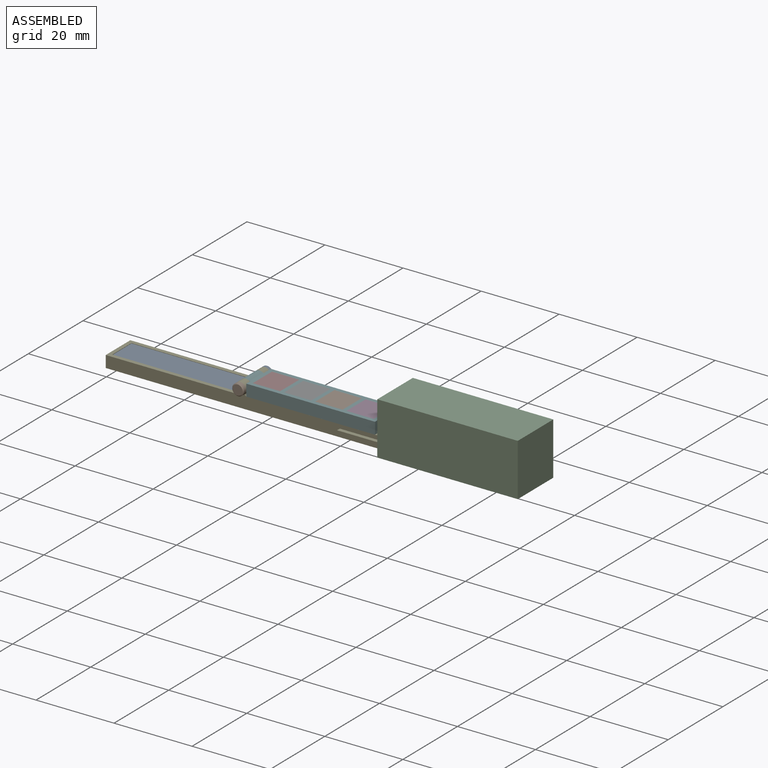
[diagram: assembled view]
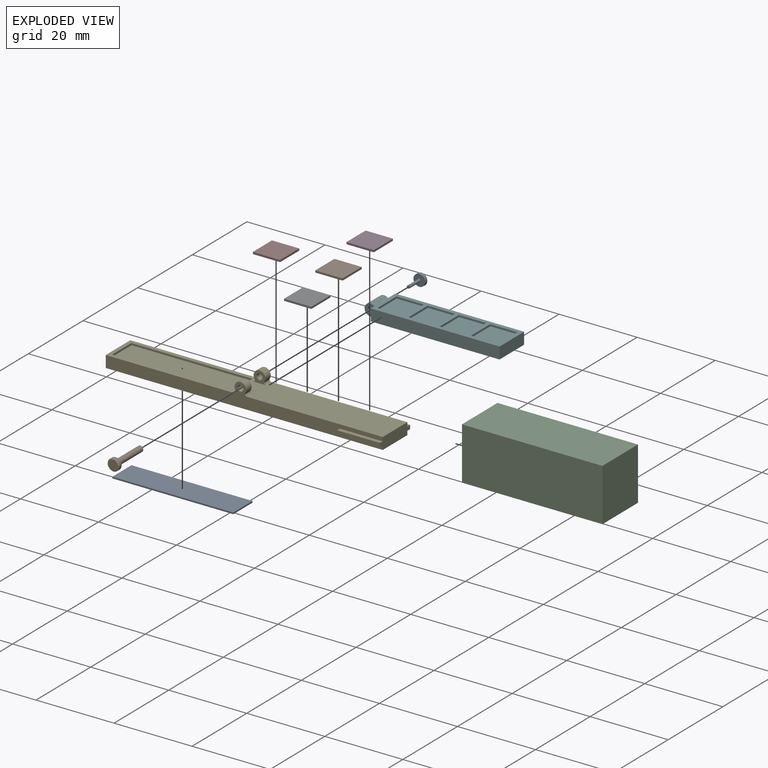
[diagram: exploded view]
GUIDED TOUR — MATED ASSEMBLY (Onshape document f24ed697e48d7db3d2a4cfa4, AutoMate assembly f24ed697e48d7db3d2a4cfa4_e18a2845403918bc11352d58_a255f0dcfe591fc9f98d8d66_default)

This assembly has 10 components, labeled P0..P9 below (a component is one placed occurrence of a part; the same part can appear more than once), held together by 11 mates. A mate is a constraint between two components; its type names the relative motion it leaves free:
  CYLINDRICAL — leaves both rotation about and translation along the listed axis free,
  FASTENED — locks the two components together rigidly (no relative motion),
  REVOLUTE — leaves rotation about the listed axis free (a hinge),
  SLIDER — leaves translation along the listed axis free.
Axis/direction vectors are unit vectors and 'through' points are millimeter coordinates, both in the assembly's world frame.

MATES
  1. FASTENED "Fastened 7": P0 <-> P1, direction (0.000, -1.000, 0.000) through (-54.50, 0.50, 5.50) mm
  2. REVOLUTE "Revolute 2": P1 <-> P4, axis (0.000, 1.000, 0.000) through (-54.50, -4.50, 5.50) mm
  3. FASTENED "Fastened 2": P5 <-> P7, direction (0.000, 0.000, 1.000) through (-48.50, 0.00, 6.50) mm
  4. SLIDER "Slider 1": P4 <-> P2, axis (1.000, 0.000, 0.000) through (-18.00, 4.50, 1.00) mm
  5. FASTENED "Fastened 3": P6 <-> P5, direction (0.000, 0.000, -1.000) through (-40.50, 0.00, 6.50) mm
  6. CYLINDRICAL "Cylindrical 2": P0 <-> P4, axis (0.000, 1.000, 0.000) through (-54.50, 2.50, 5.50) mm
  7. CYLINDRICAL "Cylindrical 1": P1 <-> P4, axis (0.000, -1.000, 0.000) through (-54.50, 0.00, 5.50) mm
  8. FASTENED "Fastened 1": P4 <-> P8, direction (0.000, 0.000, 1.000) through (-72.50, 0.00, 3.50) mm
  9. REVOLUTE "Revolute 1": P5 <-> P4, axis (0.000, -1.000, 0.000) through (-54.50, -2.50, 5.50) mm
  10. FASTENED "Fastened 5": P3 <-> P5, direction (0.000, 0.000, -1.000) through (-24.50, 0.00, 6.50) mm
  11. FASTENED "Fastened 4": P9 <-> P5, direction (0.000, 0.000, -1.000) through (-32.50, 0.00, 6.50) mm

ASSEMBLY ORDER
  1. P4 — the base component [order heuristic]
  2. P5 — core [order heuristic]
  3. P1 [order verified]
  4. P0 [order verified]
  5. P8 [order verified]
  6. P9 [order verified]
  7. P7 [order verified]
  8. P6 [order verified]
  9. P3 [order verified]
  10. P2 [order verified]
Order-tag legend:
  [order verified] — this step's position reverses a verified removal order: the component was checked to insert without passing through the ones already placed.
  [order heuristic] — the first 2 components form the assembly's core: parts whose collision-free extraction could not be verified, listed in mate-graph order.

Of the 10 components, 1 carries the full construction recipe — the FeatureScript program that regenerates the part's solid from scratch; the rest are supplied as boundary geometry only.
Each toured component is shown spotlighted twice — in the assembled view, then in the exploded view, where a leader line traces a displaced component back to its assembled socket (saturated green if recipe-attached, orange if geometry-only; every other component desaturated gray) — followed by its recipe or geometry summary and the mates that hold it.
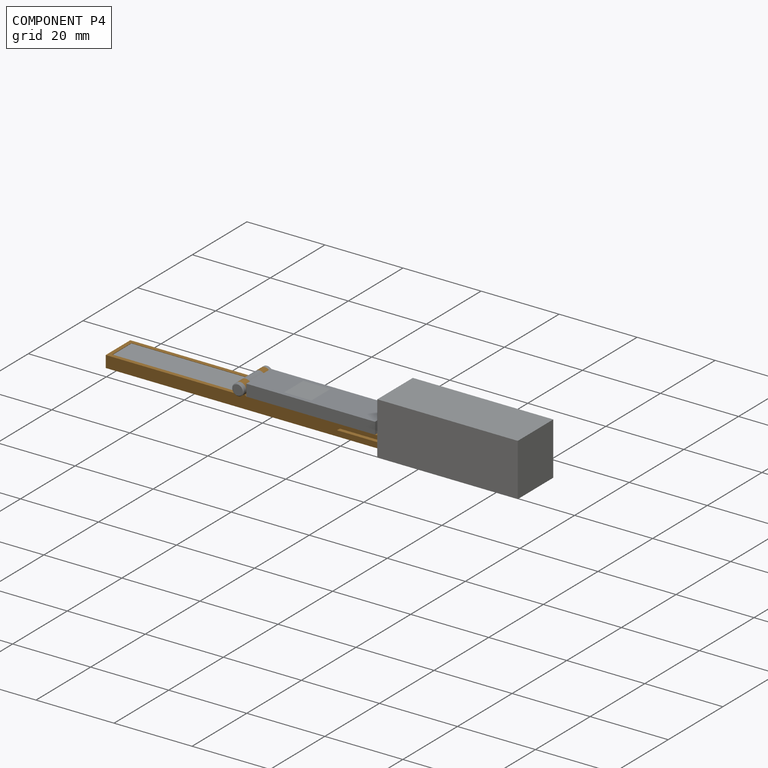
[diagram: component P4 — assembled]
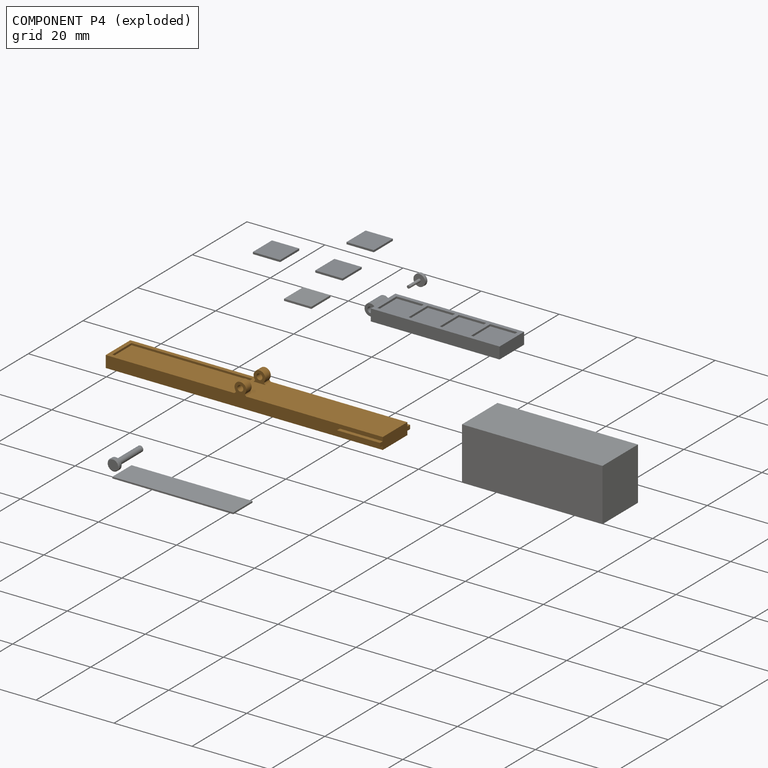
[diagram: component P4 — exploded]
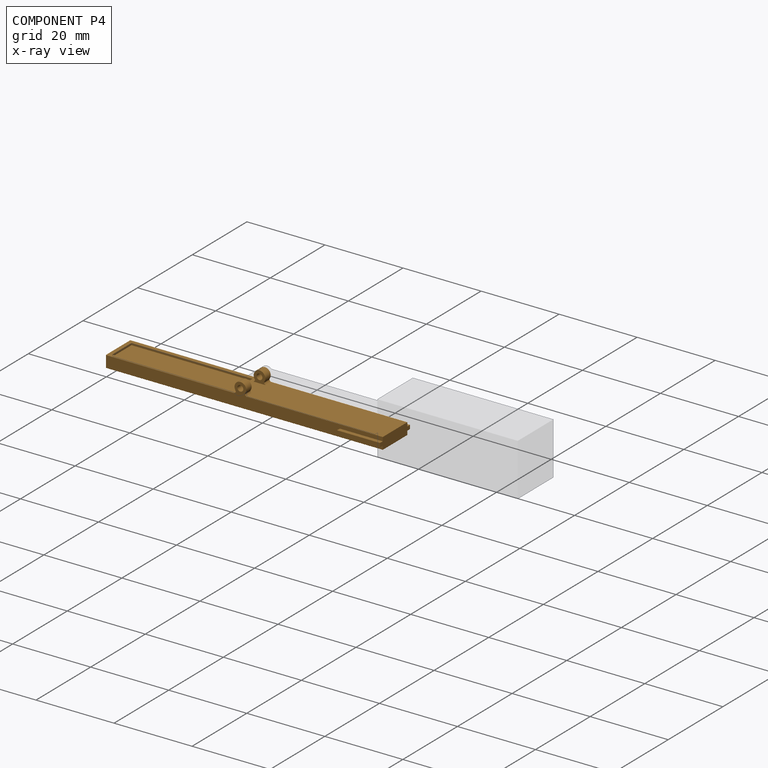
[diagram: component P4 — x-ray view]
COMPONENT P4 — geometry summary (no construction recipe available for this part):
  bounding box: 71.0 x 11.0 x 6.0 mm
  B-rep topology: 1 solid, 37 faces, 204 edges
  volume: 1854 mm^3 (40% of its bounding box)
  symmetry: mirror-symmetric across its y mid-plane
Held by: REVOLUTE mate "Revolute 2" to P1; SLIDER mate "Slider 1" to P2; CYLINDRICAL mate "Cylindrical 2" to P0; CYLINDRICAL mate "Cylindrical 1" to P1; FASTENED mate "Fastened 1" to P8; REVOLUTE mate "Revolute 1" to P5.
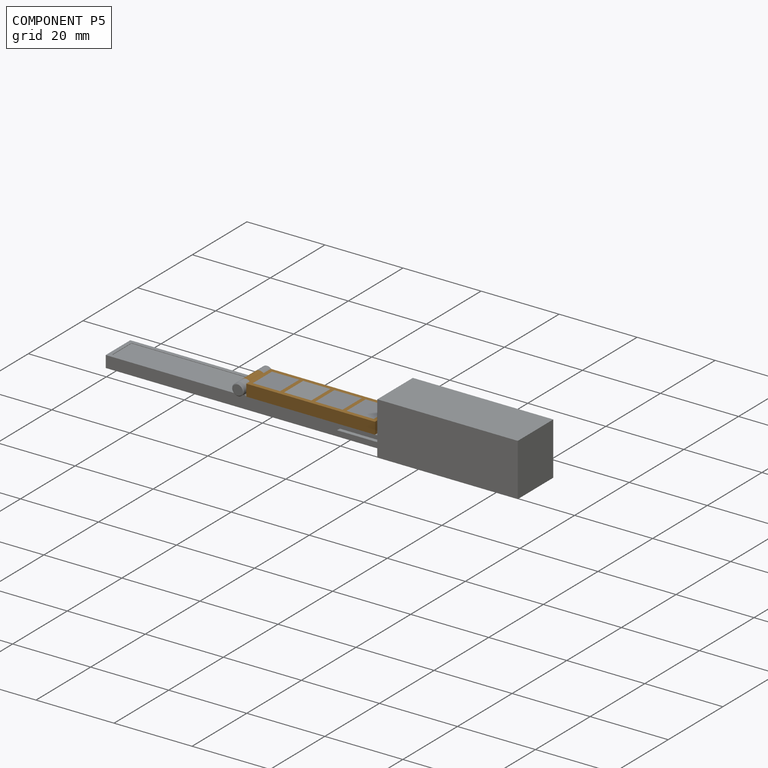
[diagram: component P5 — assembled]
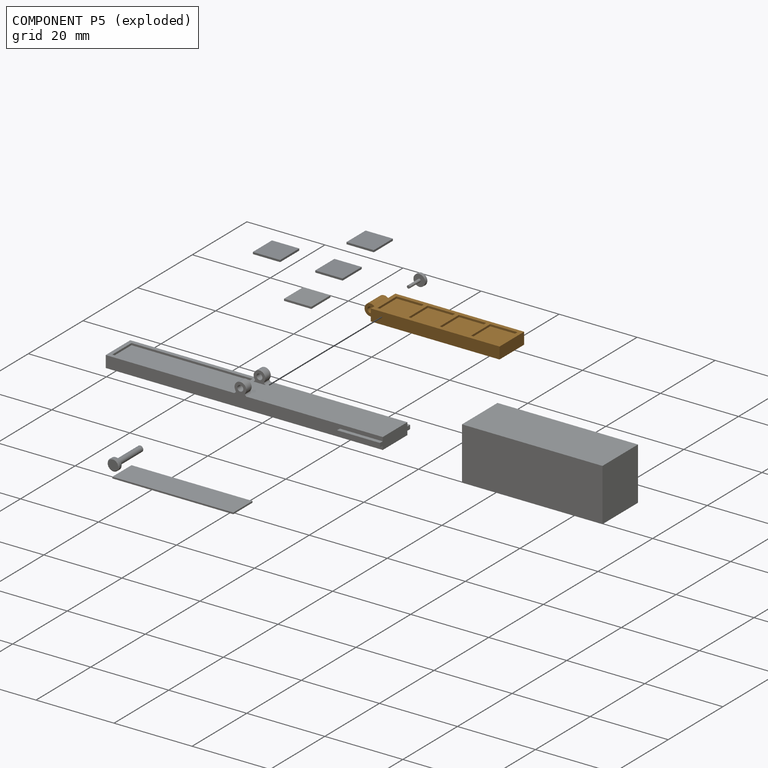
[diagram: component P5 — exploded]
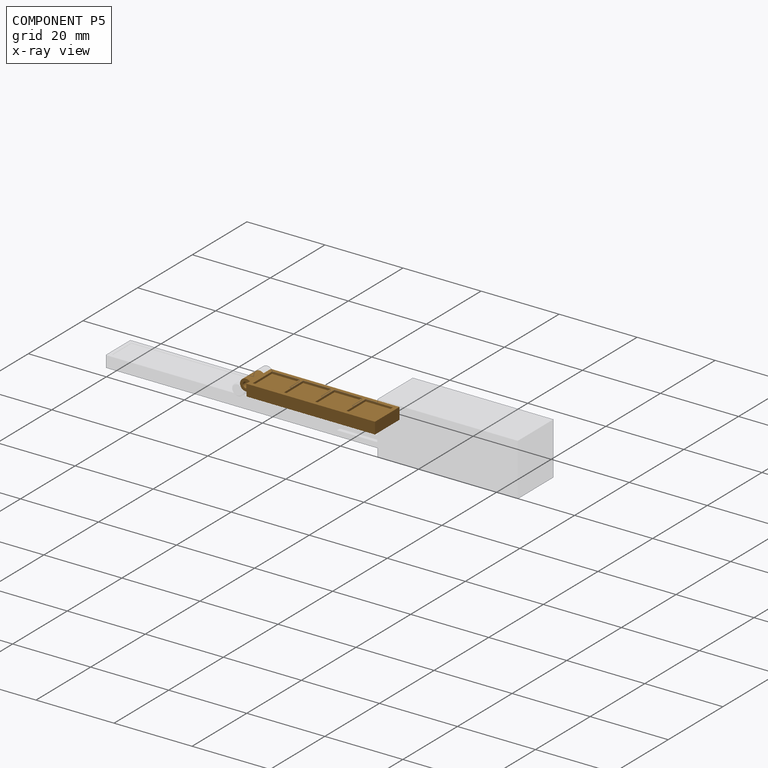
[diagram: component P5 — x-ray view]
COMPONENT P5 — geometry summary (no construction recipe available for this part):
  bounding box: 36.0 x 9.0 x 3.0 mm
  B-rep topology: 1 solid, 35 faces, 166 edges
  volume: 822 mm^3 (85% of its bounding box)
  symmetry: mirror-symmetric across its y mid-plane
Held by: FASTENED mate "Fastened 2" to P7; FASTENED mate "Fastened 3" to P6; REVOLUTE mate "Revolute 1" to P4; FASTENED mate "Fastened 5" to P3; FASTENED mate "Fastened 4" to P9.
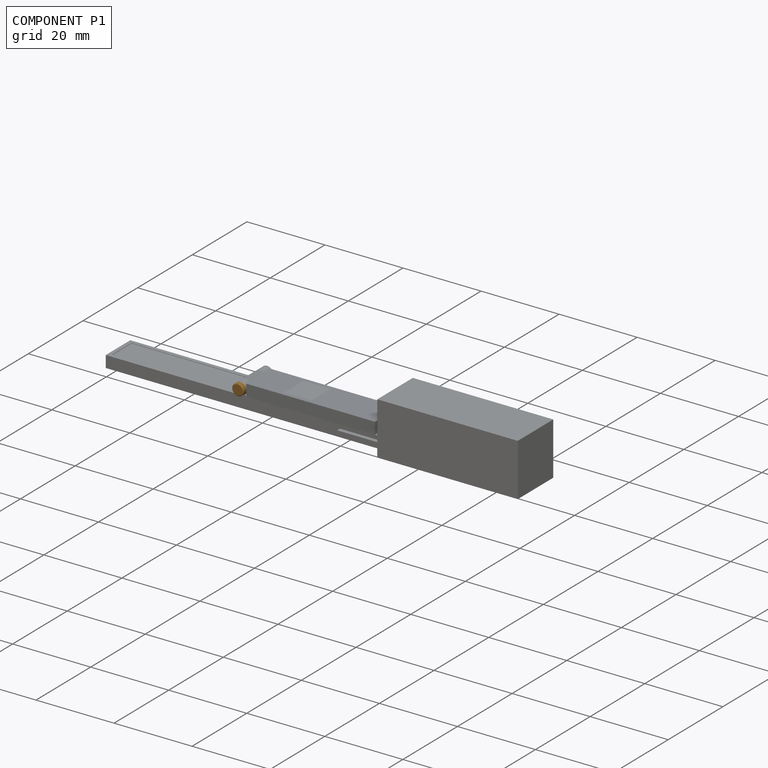
[diagram: component P1 — assembled]
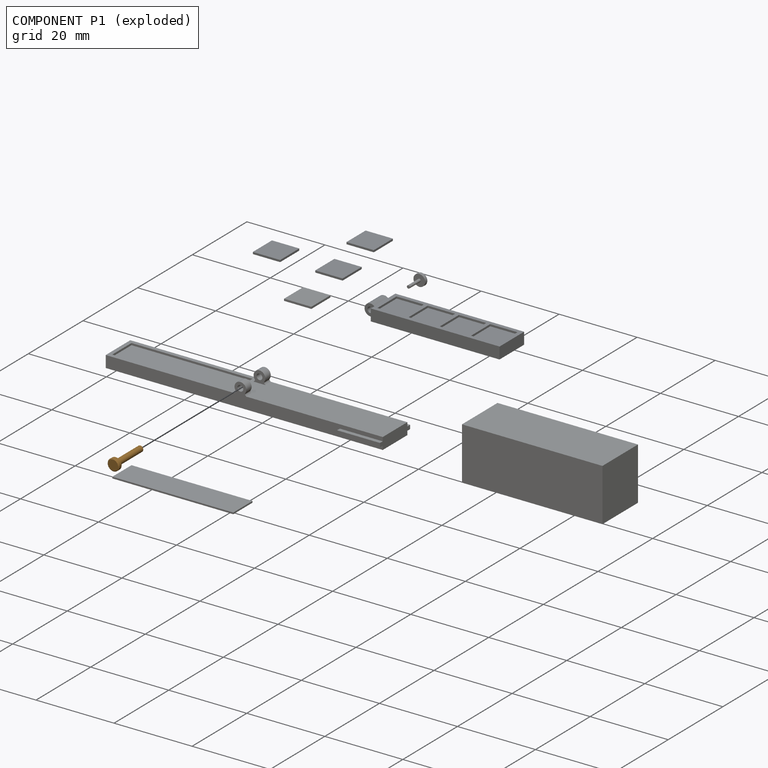
[diagram: component P1 — exploded]
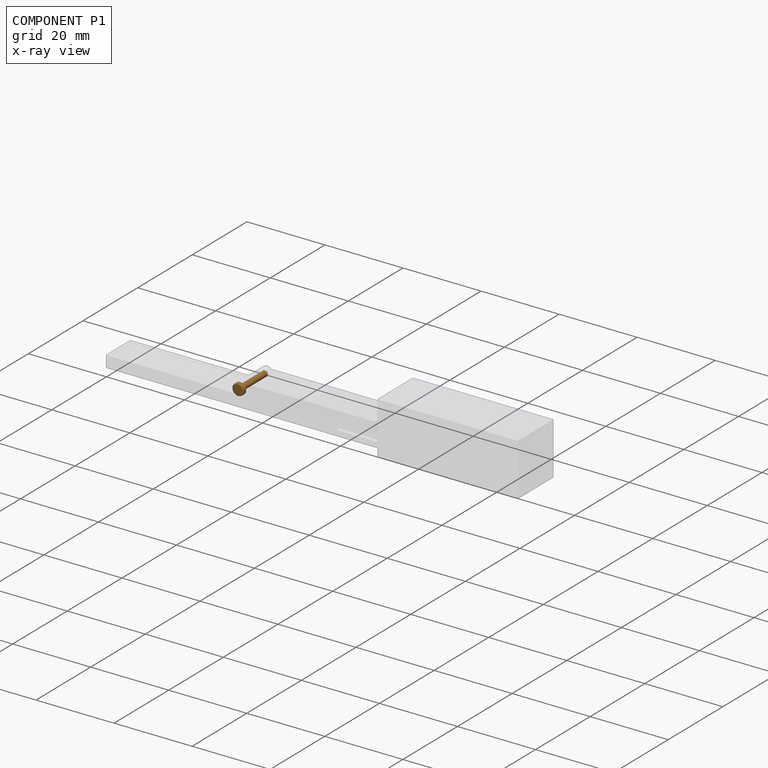
[diagram: component P1 — x-ray view]
COMPONENT P1 — geometry summary (no construction recipe available for this part):
  bounding box: 10.0 x 3.0 x 3.0 mm
  B-rep topology: 1 solid, 8 faces, 24 edges
  volume: 21 mm^3 (23% of its bounding box)
  symmetry: revolution-symmetric about the y axis through its bounding-box center; mirror-symmetric across its x mid-plane, z mid-plane
Held by: FASTENED mate "Fastened 7" to P0; REVOLUTE mate "Revolute 2" to P4; CYLINDRICAL mate "Cylindrical 1" to P4.
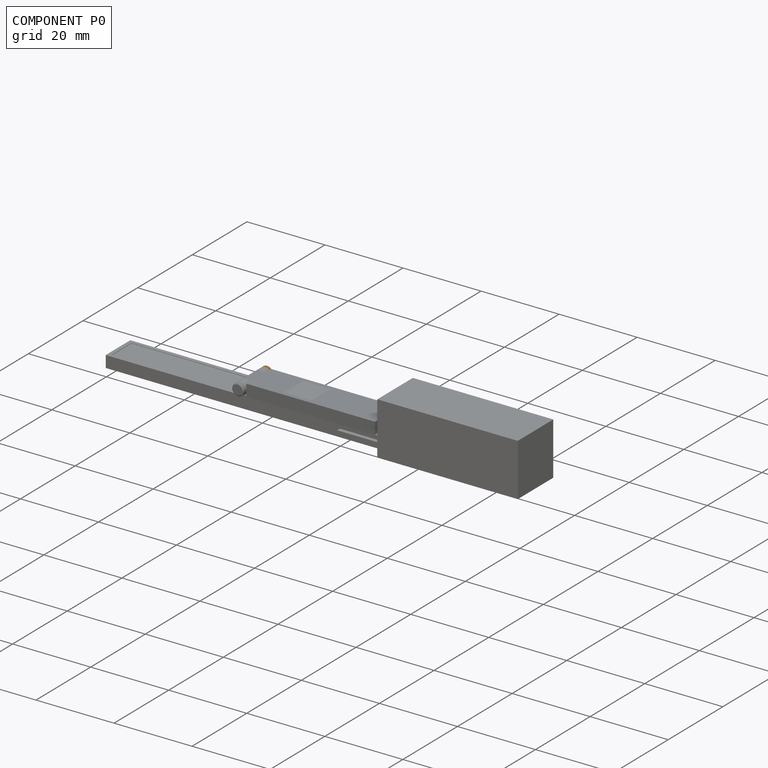
[diagram: component P0 — assembled]
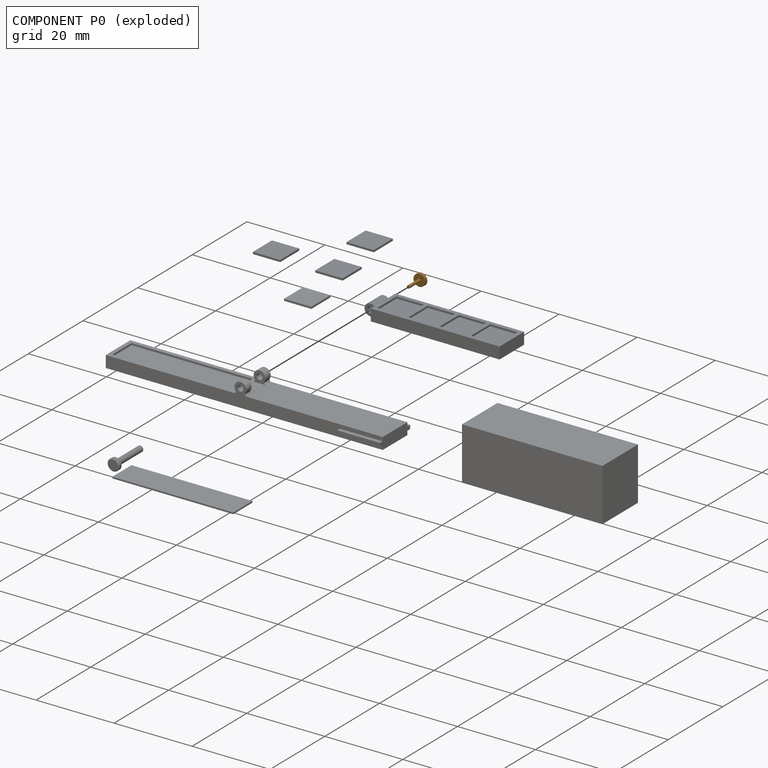
[diagram: component P0 — exploded]
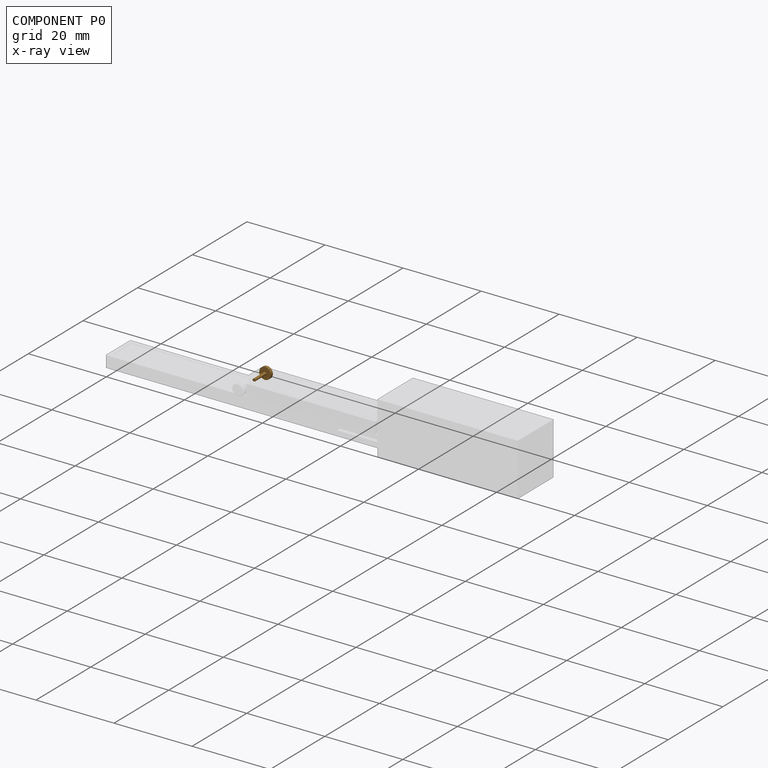
[diagram: component P0 — x-ray view]
COMPONENT P0 — geometry summary (no construction recipe available for this part):
  bounding box: 5.0 x 3.0 x 3.0 mm
  B-rep topology: 1 solid, 6 faces, 20 edges
  volume: 9 mm^3 (19% of its bounding box)
  symmetry: revolution-symmetric about the y axis through its bounding-box center; mirror-symmetric across its x mid-plane, z mid-plane
Held by: FASTENED mate "Fastened 7" to P1; CYLINDRICAL mate "Cylindrical 2" to P4.
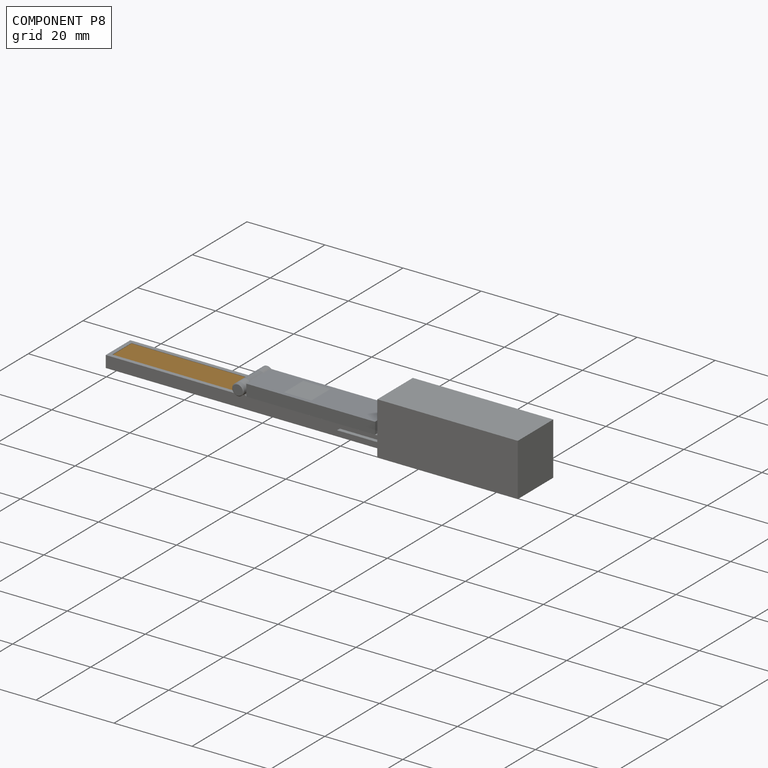
[diagram: component P8 — assembled]
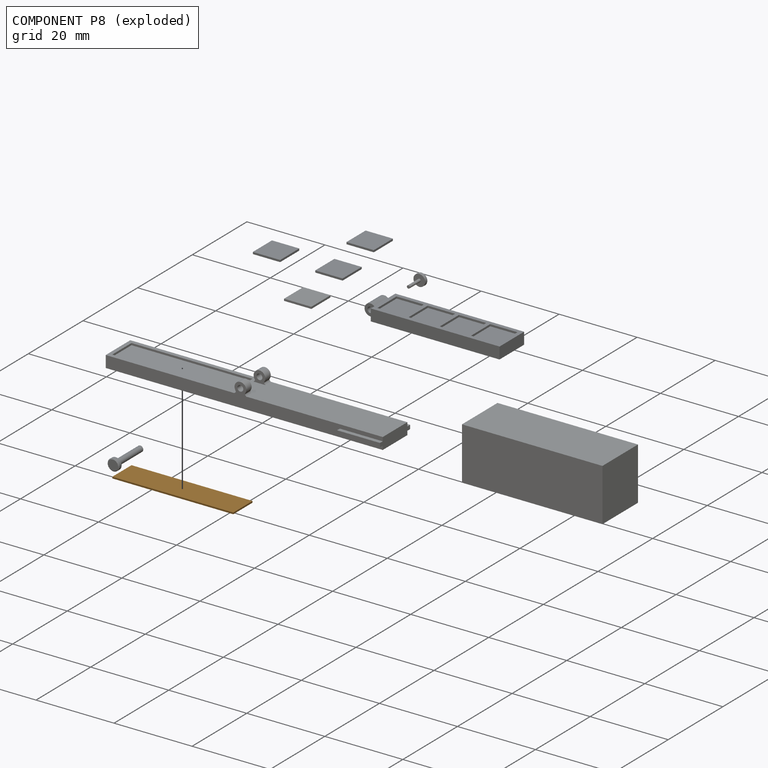
[diagram: component P8 — exploded]
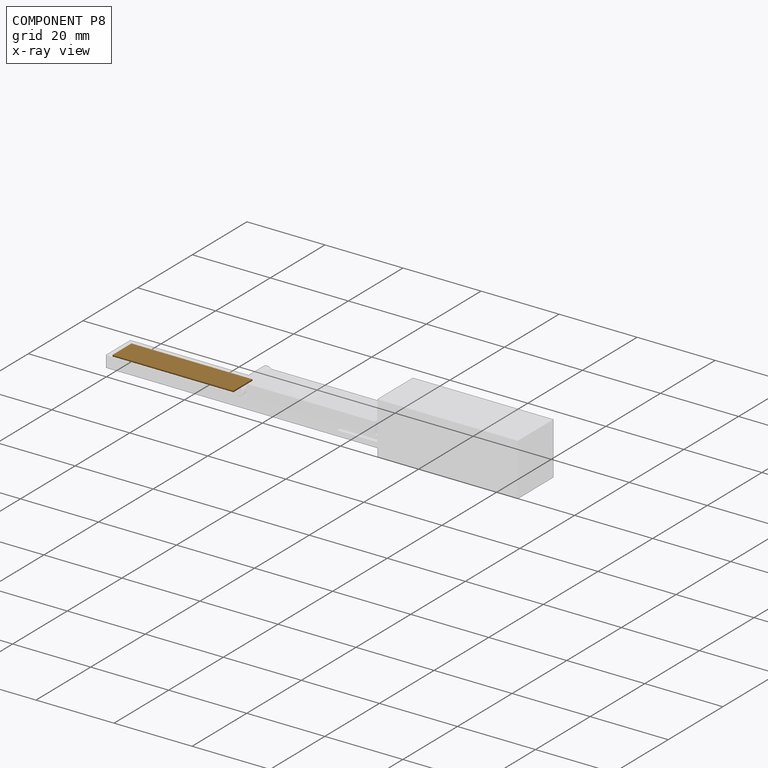
[diagram: component P8 — x-ray view]
COMPONENT P8 — geometry summary (no construction recipe available for this part):
  bounding box: 31.0 x 7.0 x 0.4 mm
  B-rep topology: 1 solid, 6 faces, 24 edges
  volume: 87 mm^3 (100% of its bounding box)
  symmetry: 2-fold rotationally symmetric about the x axis; 2-fold rotationally symmetric about the y axis; 2-fold rotationally symmetric about the z axis; mirror-symmetric across its x mid-plane, y mid-plane, z mid-plane
Held by: FASTENED mate "Fastened 1" to P4.
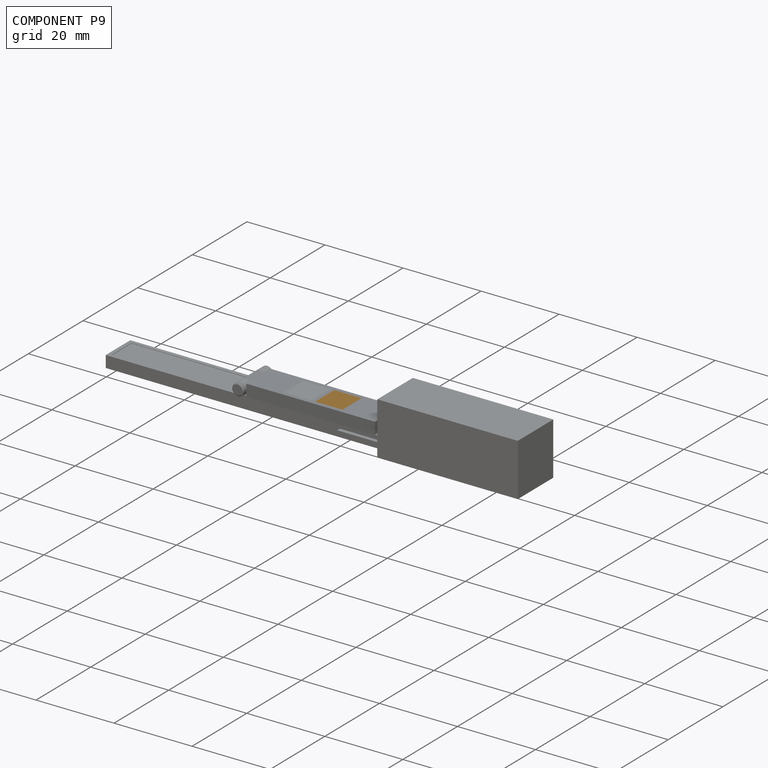
[diagram: component P9 — assembled]
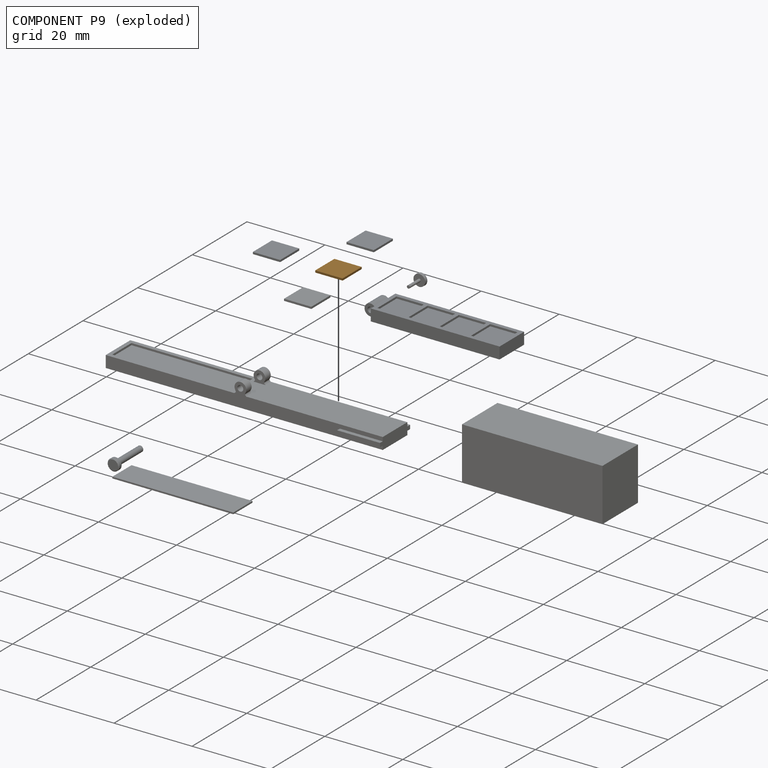
[diagram: component P9 — exploded]
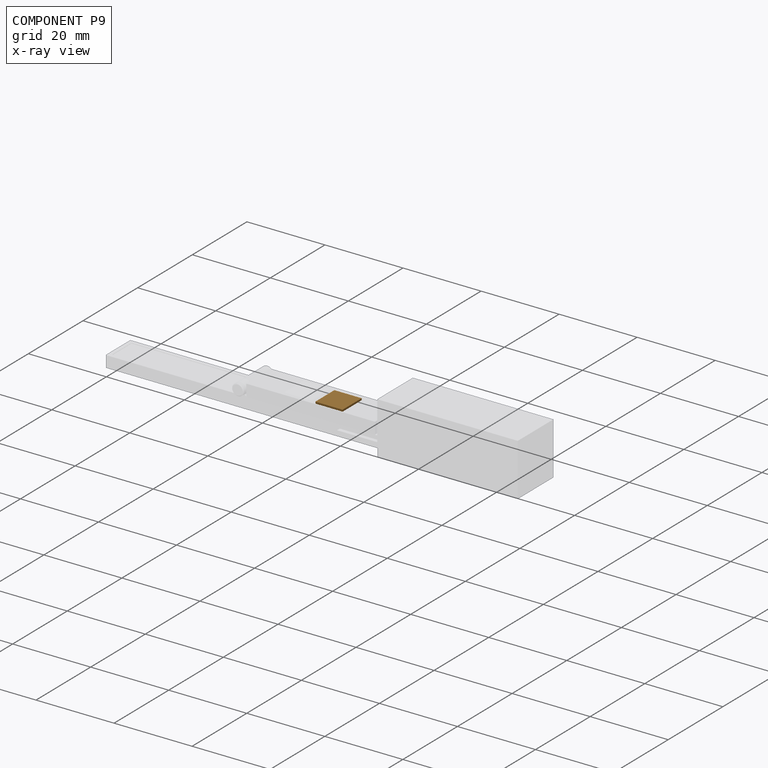
[diagram: component P9 — x-ray view]
COMPONENT P9 — geometry summary (no construction recipe available for this part):
  bounding box: 7.0 x 7.0 x 0.5 mm
  B-rep topology: 1 solid, 6 faces, 24 edges
  volume: 25 mm^3 (100% of its bounding box)
  symmetry: 2-fold rotationally symmetric about the x axis; 2-fold rotationally symmetric about the y axis; 4-fold rotationally symmetric about the z axis; mirror-symmetric across its x mid-plane, y mid-plane, z mid-plane
Held by: FASTENED mate "Fastened 4" to P5.
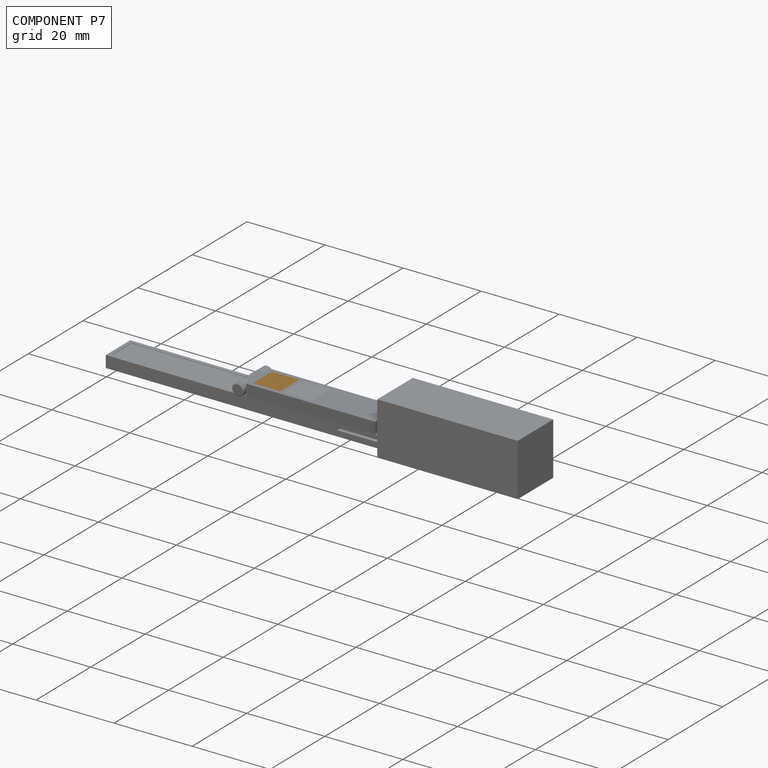
[diagram: component P7 — assembled]
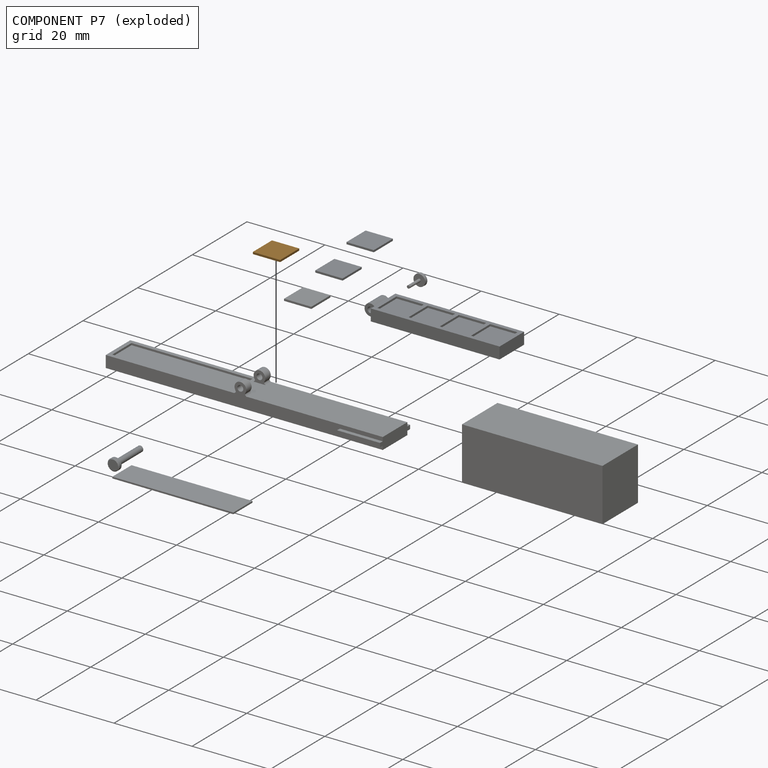
[diagram: component P7 — exploded]
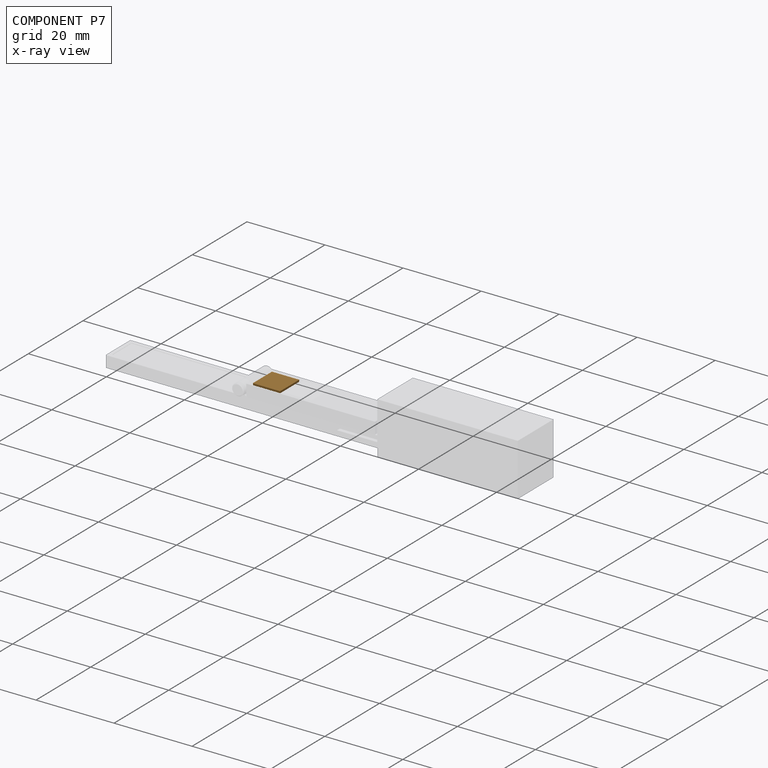
[diagram: component P7 — x-ray view]
COMPONENT P7 — geometry summary (no construction recipe available for this part):
  bounding box: 7.0 x 7.0 x 0.5 mm
  B-rep topology: 1 solid, 6 faces, 24 edges
  volume: 25 mm^3 (100% of its bounding box)
  symmetry: 2-fold rotationally symmetric about the x axis; 2-fold rotationally symmetric about the y axis; 4-fold rotationally symmetric about the z axis; mirror-symmetric across its x mid-plane, y mid-plane, z mid-plane
Held by: FASTENED mate "Fastened 2" to P5.
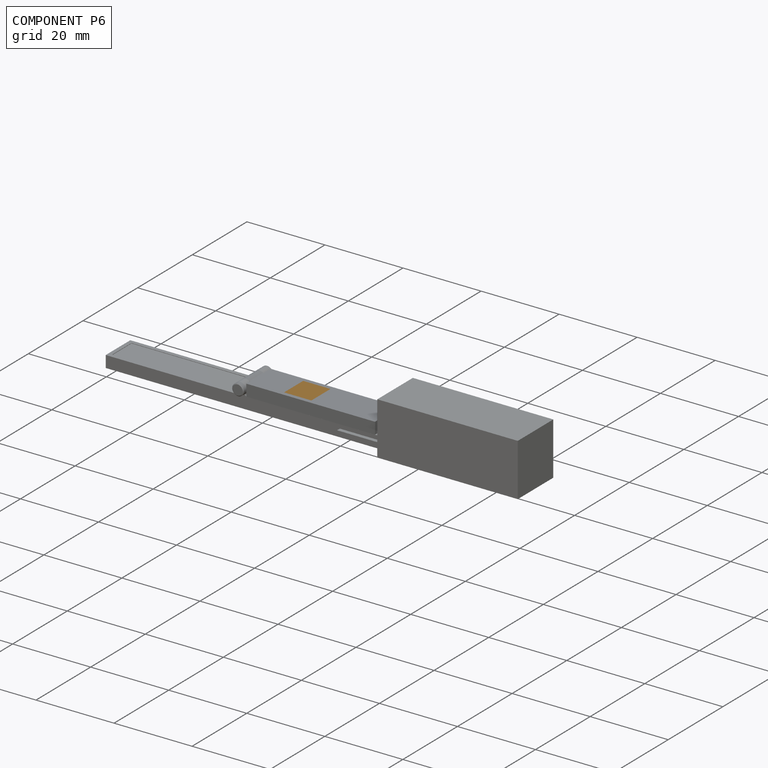
[diagram: component P6 — assembled]
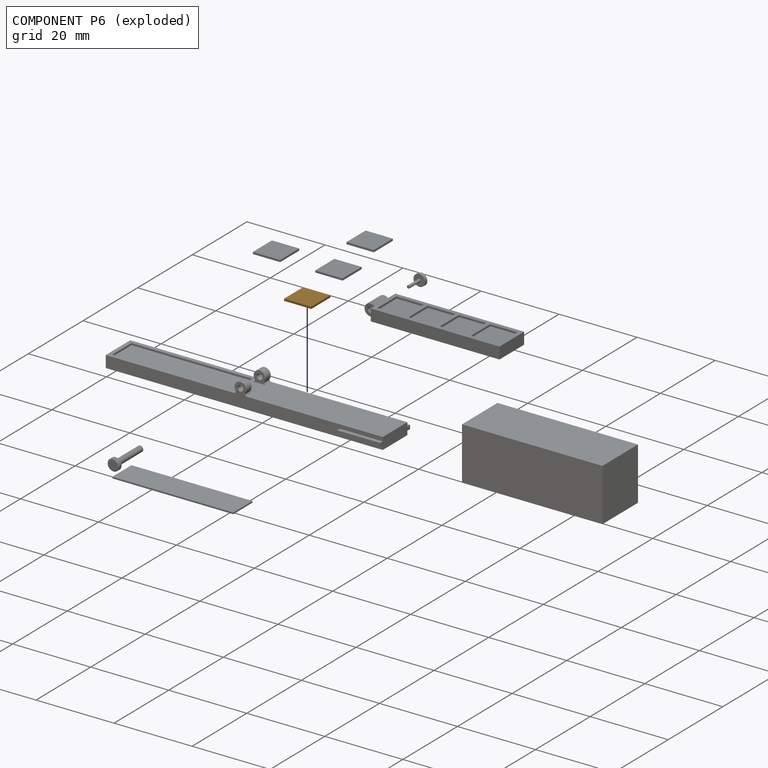
[diagram: component P6 — exploded]
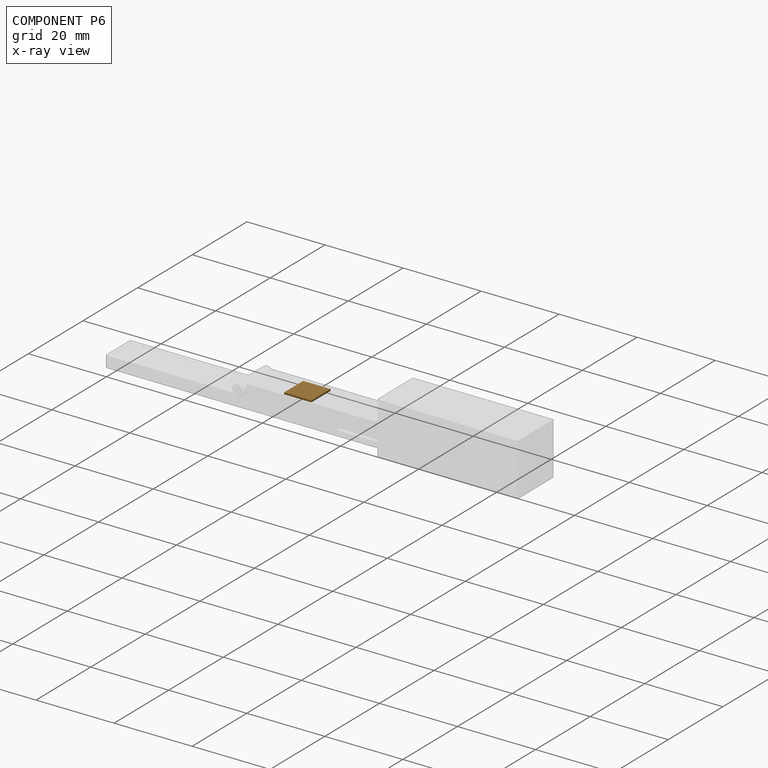
[diagram: component P6 — x-ray view]
COMPONENT P6 — geometry summary (no construction recipe available for this part):
  bounding box: 7.0 x 7.0 x 0.5 mm
  B-rep topology: 1 solid, 6 faces, 24 edges
  volume: 25 mm^3 (100% of its bounding box)
  symmetry: 2-fold rotationally symmetric about the x axis; 2-fold rotationally symmetric about the y axis; 4-fold rotationally symmetric about the z axis; mirror-symmetric across its x mid-plane, y mid-plane, z mid-plane
Held by: FASTENED mate "Fastened 3" to P5.
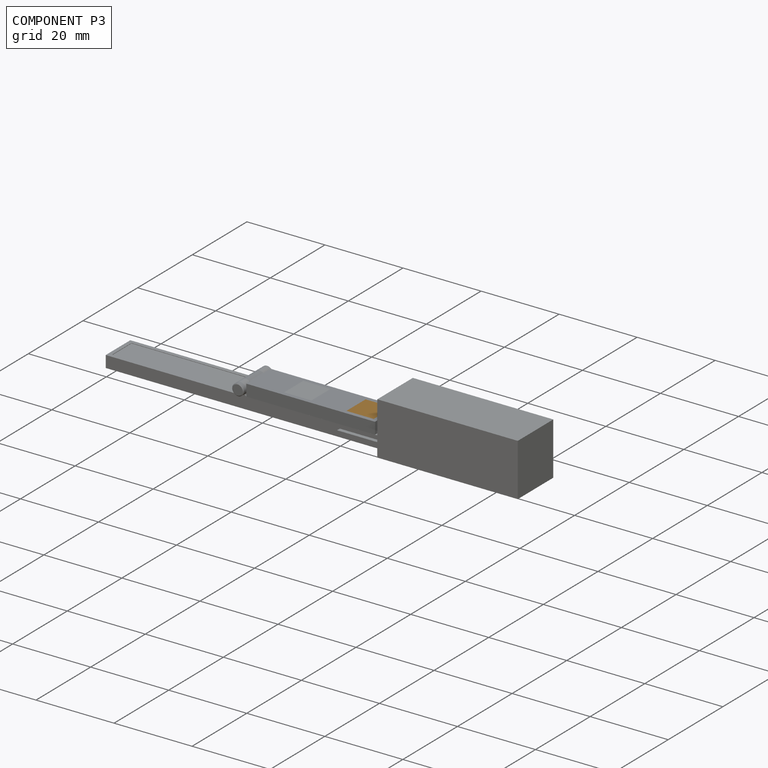
[diagram: component P3 — assembled]
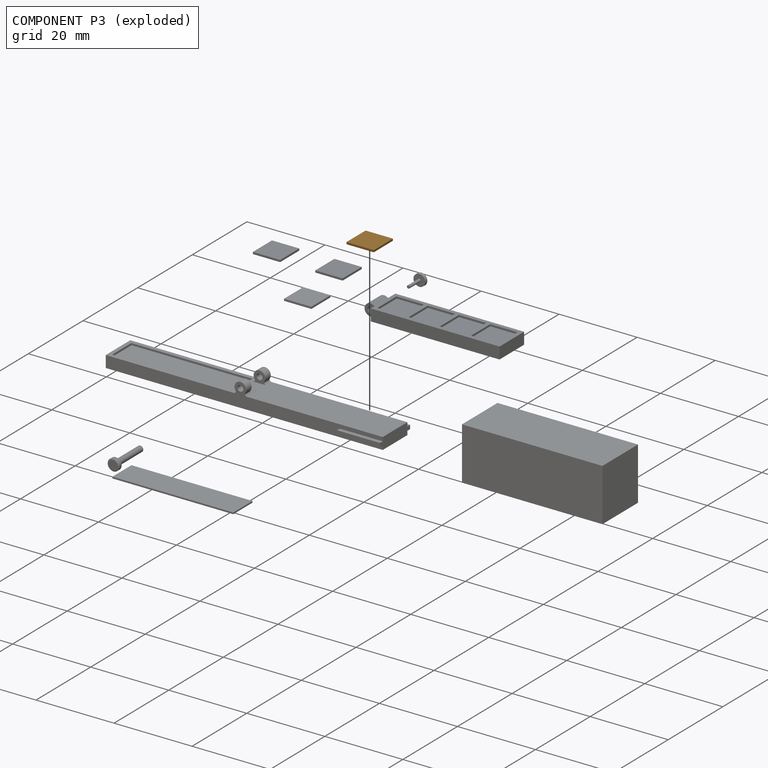
[diagram: component P3 — exploded]
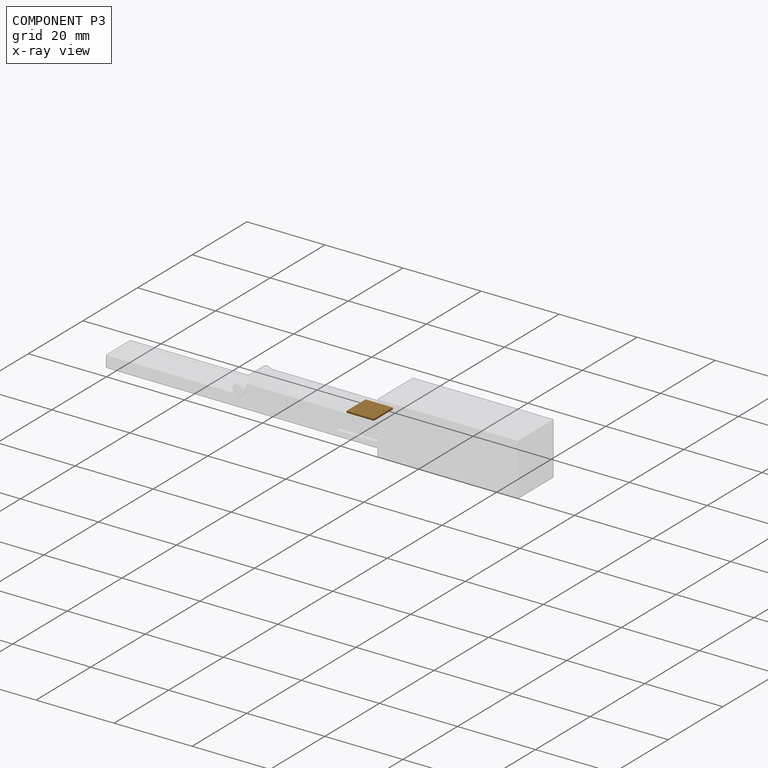
[diagram: component P3 — x-ray view]
COMPONENT P3 — geometry summary (no construction recipe available for this part):
  bounding box: 7.0 x 7.0 x 0.5 mm
  B-rep topology: 1 solid, 6 faces, 24 edges
  volume: 25 mm^3 (100% of its bounding box)
  symmetry: 2-fold rotationally symmetric about the x axis; 2-fold rotationally symmetric about the y axis; 4-fold rotationally symmetric about the z axis; mirror-symmetric across its x mid-plane, y mid-plane, z mid-plane
Held by: FASTENED mate "Fastened 5" to P5.
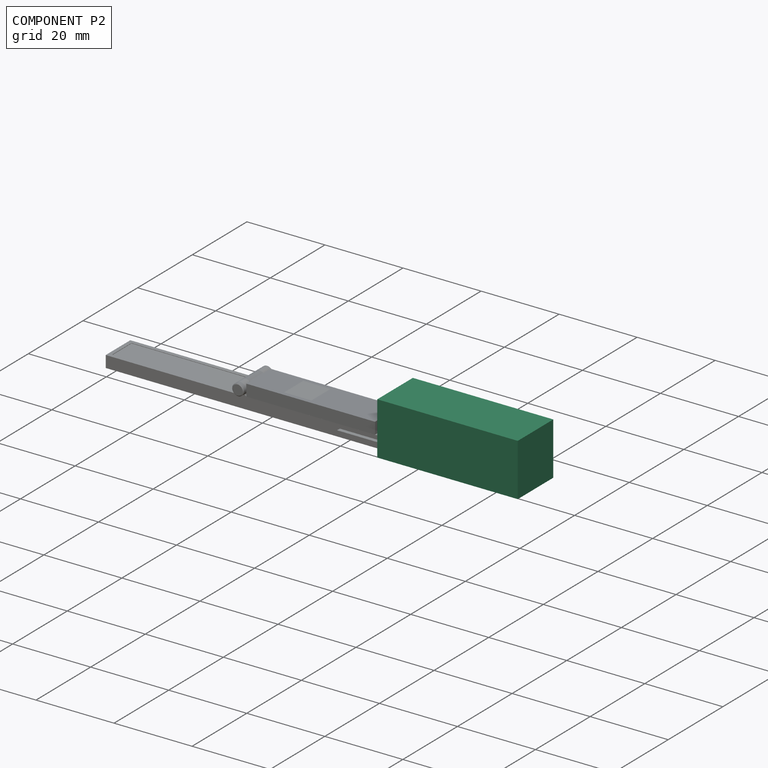
[diagram: component P2 — assembled]
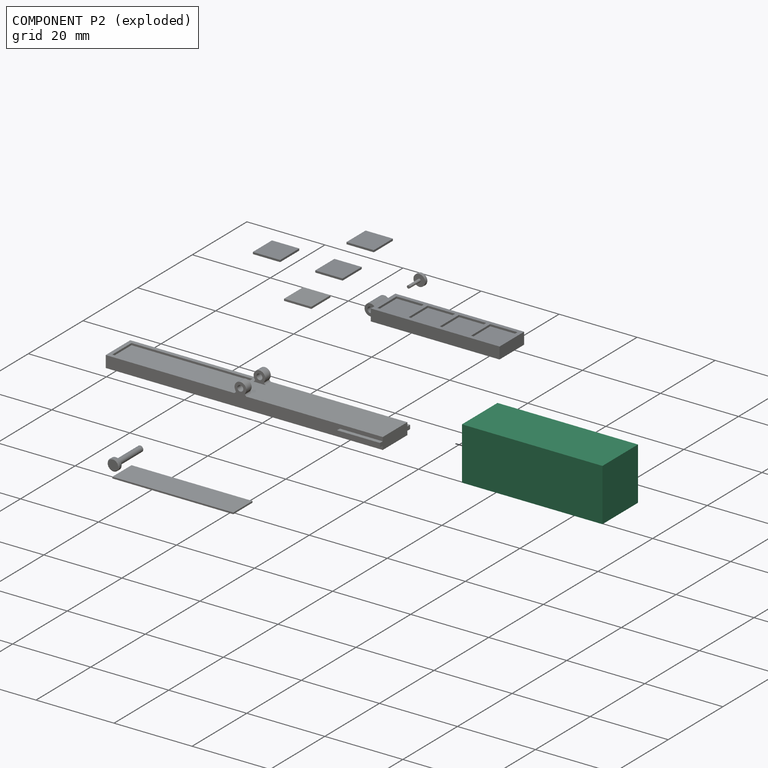
[diagram: component P2 — exploded]
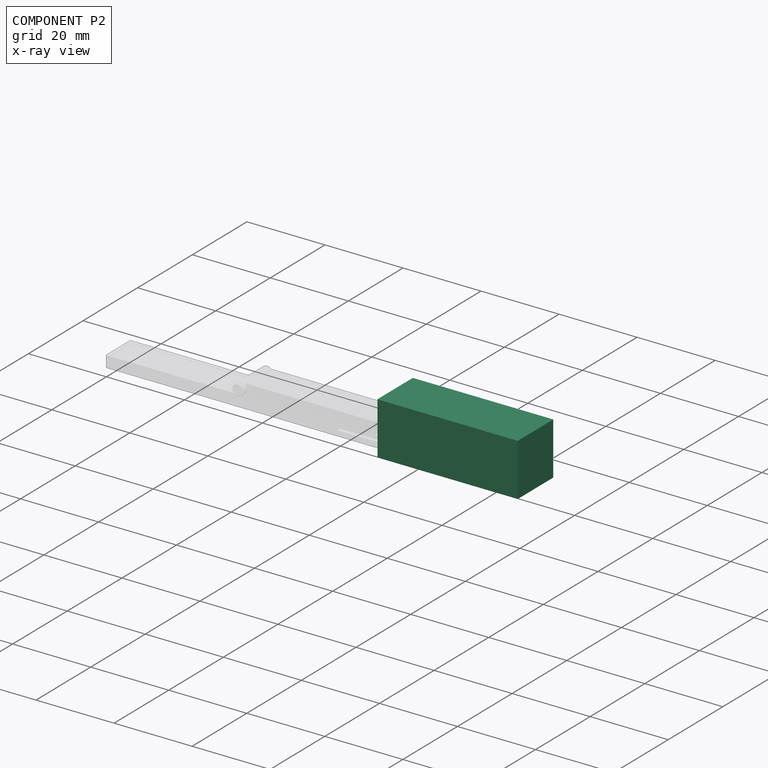
[diagram: component P2 — x-ray view]
COMPONENT P2 — recipe-attached (CADFS 00515710, mesh-verified: the recipe's output STEP matches this component's geometry to below the mesh-comparison resolution (tessellation chordal tolerance ~0.0609 mm)).
Held by: SLIDER mate "Slider 1" to P4.
Construction recipe (FeatureScript — the CAD program that rebuilds this solid; sketch coordinates are in the units given by the * unit suffixes, e.g. mm):

FeatureScript 1511;
import(path : "onshape/std/geometry.fs", version : "1511.0");
import(path : "onshape/std/common.fs", version : "1511.0");
const mm = millimeter;
const VERTEX = EntityType.VERTEX;
const EDGE = EntityType.EDGE;
const FACE = EntityType.FACE;
const BODY = EntityType.BODY;
function v(x, y){return vector(x, y);}
function OD(order){return orderDisambiguation(order);}
function OSD(set){return originalSetDisambiguation(set);}
function TD(topology){return topologyDisambiguation(topology);}
function TDD(query){return trueDependencyDisambiguation(query);}
function sQuery(a, b, c) {return sketchEntityQuery(a, b, c);}

annotation { "Feature Type Name" : "Feature", "Feature Type Description" : "" }
export const myFeature = defineFeature(function(context is Context, id is Id, definition is map)
    precondition{}
    {
        {
            var Q0;
            Q0=qCreatedBy(makeId("Top.planeOp"),FACE);
            var sketch = newSketch(context, id + "F0", { "sketchPlane" : qUnion([Q0])});
            skLineSegment(sketch, "E0.bottom", {"start": v(-27.77, -4.5) * mm, "end": v(4.23, -4.5) * mm});
            skLineSegment(sketch, "E0.top", {"start": v(-27.77, 4.5) * mm, "end": v(4.23, 4.5) * mm});
            skLineSegment(sketch, "E0.left", {"start": v(-27.77, -4.5) * mm, "end": v(-27.77, 4.5) * mm});
            skLineSegment(sketch, "E0.right", {"start": v(4.23, -4.5) * mm, "end": v(4.23, 4.5) * mm});
            skLineSegment(sketch, "E1.bottom", {"start": v(-28.77, -6.5) * mm, "end": v(7.23, -6.5) * mm});
            skLineSegment(sketch, "E1.top", {"start": v(-28.77, 6.5) * mm, "end": v(7.23, 6.5) * mm});
            skLineSegment(sketch, "E1.left", {"start": v(-28.77, -6.5) * mm, "end": v(-28.77, 6.5) * mm});
            skLineSegment(sketch, "E1.right", {"start": v(7.23, -6.5) * mm, "end": v(7.23, 6.5) * mm});
            skLineSegment(sketch, "E2", {"start": v(-28.77, 0) * mm, "end": v(7.23, 0) * mm, "construction": true});
            skLineSegment(sketch, "E3", {"start": v(-27.77, -4.5) * mm, "end": v(-28.77, -4.5) * mm});
            skLineSegment(sketch, "E4", {"start": v(-27.77, 4.5) * mm, "end": v(-28.77, 4.5) * mm});
            skSolve(sketch);
        }
        {
            var Q0;
            Q0=makeQuery(id+"F0.imprint","IMPRINT",FACE,{"disambiguationData":[TD([[makeQuery(id+"F0.imprint","IMPRINT",EDGE,{"derivedFrom":sQuery(id+"F0.wireOp",EDGE,"E0.bottom")}),-1.0]])]});
            var Q1;
            Q1=makeQuery(id+"F0.imprint","IMPRINT",FACE,{"disambiguationData":[TD([[makeQuery(id+"F0.imprint","IMPRINT",EDGE,{"derivedFrom":sQuery(id+"F0.wireOp",EDGE,"E0.bottom")}),1.0]])]});
            var Q2;
            Q2=makeQuery(id+"F0.imprint","IMPRINT",FACE,{"disambiguationData":[TD([[makeQuery(id+"F0.imprint","IMPRINT",EDGE,{"derivedFrom":sQuery(id+"F0.wireOp",EDGE,"E0.left")}),1.0]])]});
            extrude(context, id + "F1", {"entities" : qUnion([Q0, Q1, Q2]), "depth" : 6.5 * mm, "offsetDistance" : 25 * mm});
        }
        {
            var Q0;
            Q0=makeQuery(id+"F0.imprint","IMPRINT",FACE,{"disambiguationData":[TD([[makeQuery(id+"F0.imprint","IMPRINT",EDGE,{"derivedFrom":sQuery(id+"F0.wireOp",EDGE,"E0.bottom")}),1.0]])]});
            extrude(context, id + "F2", {"entities" : qUnion([Q0]), "operationType" : NewBodyOperationType.REMOVE, "depth" : 5.5 * mm, "offsetDistance" : 25 * mm});
        }
        {
            var Q0;
            Q0=makeQuery(id+"F0.imprint","IMPRINT",FACE,{"disambiguationData":[TD([[makeQuery(id+"F0.imprint","IMPRINT",EDGE,{"derivedFrom":sQuery(id+"F0.wireOp",EDGE,"E0.bottom")}),-1.0]])]});
            extrude(context, id + "F3", {"entities" : qUnion([Q0]), "operationType" : NewBodyOperationType.ADD, "oppositeDirection" : true, "depth" : 7 * mm, "offsetDistance" : 25 * mm});
        }
        {
            var Q0;
            {var subQ0=sQuery(id+"F0.wireOp",EDGE,"E1.left");Q0=makeQuery(id+"F3.boolean.opBoolean","MERGE",FACE,{"derivedFrom":[makeQuery(id+"F1.opExtrude","SWEPT_FACE",FACE,{"disambiguationData":[OSD([subQ0])]}),makeQuery(id+"F3.opExtrude","SWEPT_FACE",FACE,{"disambiguationData":[OSD([subQ0]),TDD([makeQuery(id+"F0.imprint","IMPRINT",EDGE,{"disambiguationData":[TD([[makeQuery(id+"F0.imprint","INTERSECT",VERTEX,{"derivedFrom":[sQuery(id+"F0.wireOp",EDGE,"E1.bottom"),subQ0]}),-1.0]])],"derivedFrom":subQ0})])]}),makeQuery(id+"F3.opExtrude","SWEPT_FACE",FACE,{"disambiguationData":[OSD([subQ0]),TDD([makeQuery(id+"F0.imprint","IMPRINT",EDGE,{"disambiguationData":[TD([[makeQuery(id+"F0.imprint","INTERSECT",VERTEX,{"derivedFrom":[sQuery(id+"F0.wireOp",EDGE,"E1.top"),subQ0]}),1.0]])],"derivedFrom":subQ0})])]})]});}
            var sketch = newSketch(context, id + "F4", { "sketchPlane" : qUnion([Q0])});
            skLineSegment(sketch, "E5.bottom", {"start": v(-5.5, -4) * mm, "end": v(-4.5, -4) * mm});
            skLineSegment(sketch, "E5.top", {"start": v(-5.5, -5) * mm, "end": v(-4.5, -5) * mm});
            skLineSegment(sketch, "E5.left", {"start": v(-5.5, -4) * mm, "end": v(-5.5, -5) * mm});
            skLineSegment(sketch, "E5.right", {"start": v(-4.5, -4) * mm, "end": v(-4.5, -5) * mm});
            skLineSegment(sketch, "E6", {"start": v(0, 0) * mm, "end": v(0, -9.1) * mm, "construction": true});
            skPoint(sketch, "E6.endSnap0", {"position": v(0, 0) * mm});
            skLineSegment(sketch, "E7.bottom", {"start": v(-4.5, -6) * mm, "end": v(4.5, -6) * mm});
            skLineSegment(sketch, "E7.top", {"start": v(-4.5, -7) * mm, "end": v(4.5, -7) * mm});
            skLineSegment(sketch, "E7.left", {"start": v(-4.5, -6) * mm, "end": v(-4.5, -7) * mm});
            skLineSegment(sketch, "E7.right", {"start": v(4.5, -6) * mm, "end": v(4.5, -7) * mm});
            skSolve(sketch);
        }
        {
            var Q0;
            Q0=makeQuery(id+"F4.imprint","IMPRINT",FACE,{"disambiguationData":[TD([[makeQuery(id+"F4.imprint","IMPRINT",EDGE,{"derivedFrom":sQuery(id+"F4.wireOp",EDGE,"E5.bottom")}),-1.0]])]});
            extrude(context, id + "F5", {"entities" : qUnion([Q0]), "operationType" : NewBodyOperationType.REMOVE, "oppositeDirection" : true, "depth" : 35 * mm, "offsetDistance" : 25 * mm});
        }
        {
            var Q0;
            Q0=makeQuery(id+"F1.opExtrude","SWEPT_BODY",BODY,{"disambiguationData":[OSD([sQuery(id+"F0.wireOp",EDGE,"E1.bottom"),sQuery(id+"F0.wireOp",EDGE,"E1.top"),sQuery(id+"F0.wireOp",EDGE,"E1.left"),sQuery(id+"F0.wireOp",EDGE,"E1.right")])]});
            var Q1;
            Q1=qCreatedBy(makeId("Front.planeOp"),FACE);
            mirror(context, id + "F6", {"operationType" : NewBodyOperationType.INTERSECT, "entities" : qUnion([Q0]), "mirrorPlane" : qUnion([Q1])});
        }
        {
            var Q0;
            {var subQ0=sQuery(id+"F0.wireOp",EDGE,"E0.right");Q0=makeQuery(id+"F3.boolean.opBoolean","MERGE",FACE,{"derivedFrom":[makeQuery(id+"F2.boolean.opBoolean","COPY",FACE,{"derivedFrom":makeQuery(id+"F2.opExtrude","SWEPT_FACE",FACE,{"disambiguationData":[OSD([subQ0])]})}),makeQuery(id+"F3.opExtrude","SWEPT_FACE",FACE,{"disambiguationData":[OSD([subQ0])]})]});}
            var sketch = newSketch(context, id + "F7", { "sketchPlane" : qUnion([Q0])});
            skLineSegment(sketch, "E8.bottom", {"start": v(-4.5, -4) * mm, "end": v(4.5, -4) * mm});
            skLineSegment(sketch, "E8.top", {"start": v(-4.5, -7) * mm, "end": v(4.5, -7) * mm});
            skLineSegment(sketch, "E8.left", {"start": v(-4.5, -4) * mm, "end": v(-4.5, -7) * mm});
            skLineSegment(sketch, "E8.right", {"start": v(4.5, -4) * mm, "end": v(4.5, -7) * mm});
            skSolve(sketch);
        }
        {
            var Q0;
            {var subQ3=sQuery(id+"F7.wireOp",EDGE,"E8.bottom");Q0=makeQuery(id+"F7.imprint","IMPRINT",FACE,{"disambiguationData":[TD([[makeQuery(id+"F7.imprint","IMPRINT",EDGE,{"derivedFrom":subQ3}),-1.0]])]});}
            extrude(context, id + "F8", {"entities" : qUnion([Q0]), "operationType" : NewBodyOperationType.REMOVE, "oppositeDirection" : true, "depth" : 2 * mm, "offsetDistance" : 25 * mm});
        }
        {
            var Q0;
            Q0=makeQuery(id+"F4.imprint","IMPRINT",FACE,{"disambiguationData":[TD([[makeQuery(id+"F4.imprint","IMPRINT",EDGE,{"derivedFrom":sQuery(id+"F4.wireOp",EDGE,"E7.bottom")}),-1.0]])]});
            var Q1;
            Q1=makeQuery(id+"F1.opExtrude","SWEPT_BODY",BODY,{"disambiguationData":[OSD([sQuery(id+"F0.wireOp",EDGE,"E1.bottom"),sQuery(id+"F0.wireOp",EDGE,"E1.top"),sQuery(id+"F0.wireOp",EDGE,"E1.left"),sQuery(id+"F0.wireOp",EDGE,"E1.right")])]});
            extrude(context, id + "F9", {"entities" : qUnion([Q0]), "operationType" : NewBodyOperationType.ADD, "endBound" : BoundingType.UP_TO_BODY, "oppositeDirection" : true, "depth" : 25 * mm, "endBoundEntityBody" : qUnion([Q1]), "offsetDistance" : 25 * mm});
        }
    });
PROVENANCE & LICENSES
Assembly (occurrences, transforms, mates, per-part STEP geometry): AutoMate dataset, Zenodo record 7776208, CC0.
Construction recipes: CADFS (HuggingFace VladPyatov/CADFS, CC-BY-4.0, layered over the ABC dataset), FeatureScript reconstruction programs keyed by ABC model id.
Join: ABC meta listings map ABC model id -> Onshape documentId; within a shared document, parts are matched by geometric signature (bounding-box dims + volume at 0.1% relative tolerance, exact B-rep face/solid counts).
Verification: 1 of this assembly's 10 components carries a recipe attachment, and every attachment is mesh-verified: the CADFS STEP and the AutoMate member STEP were compared as meshes in their shared local frame (symmetric sampled-point-to-mesh distance); worst across the 1 attachment: below the mesh-comparison resolution (tessellation chordal tolerance ~0.0609 mm) on a 41 mm part.
Renders: orthographic iso camera (az 35 / el 25); the floor grid conveys scale (grid pitch printed in each image; no ruler). In the exploded view each component is displaced by its stored offset vector: the offsets alone carry the explosion direction (mate normal/axis signs are not orientation cues and do not encode it), and separation distances are assigned per mate-chain, not proportionally to assembly-order depth.
